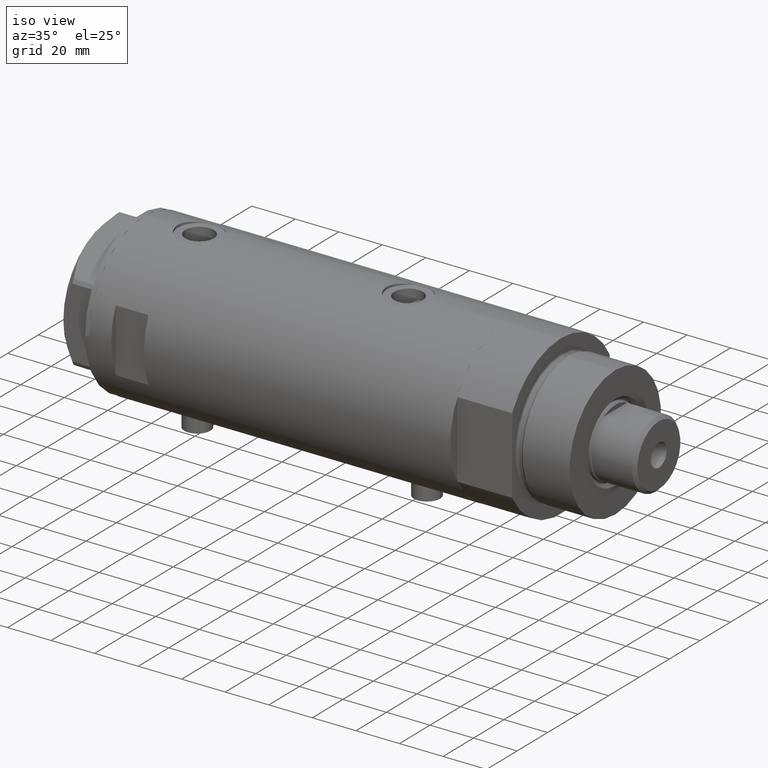
[diagram: clean part render]
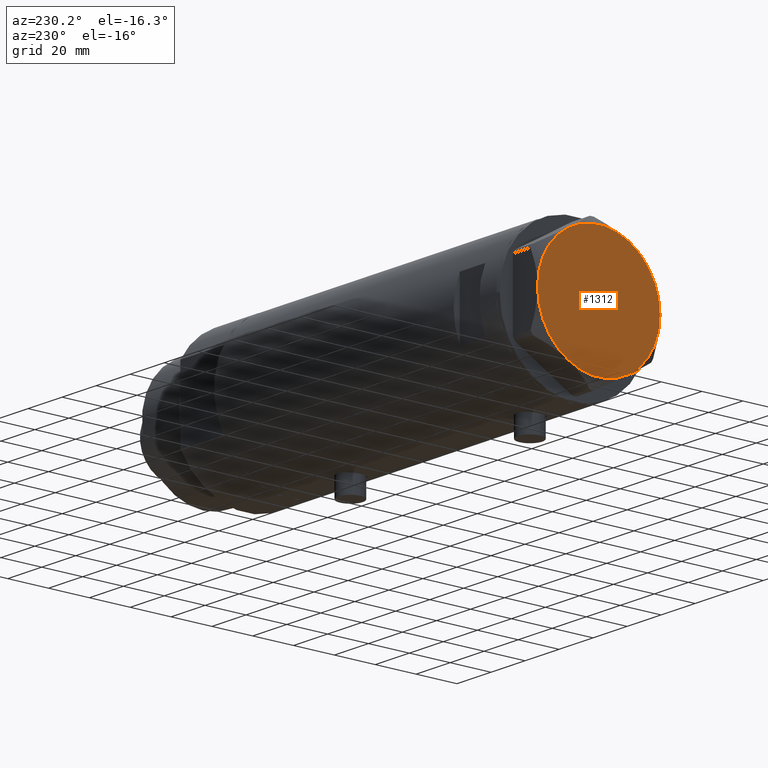
[diagram: tour spotlight — one face highlighted and labeled with its STEP entity id]
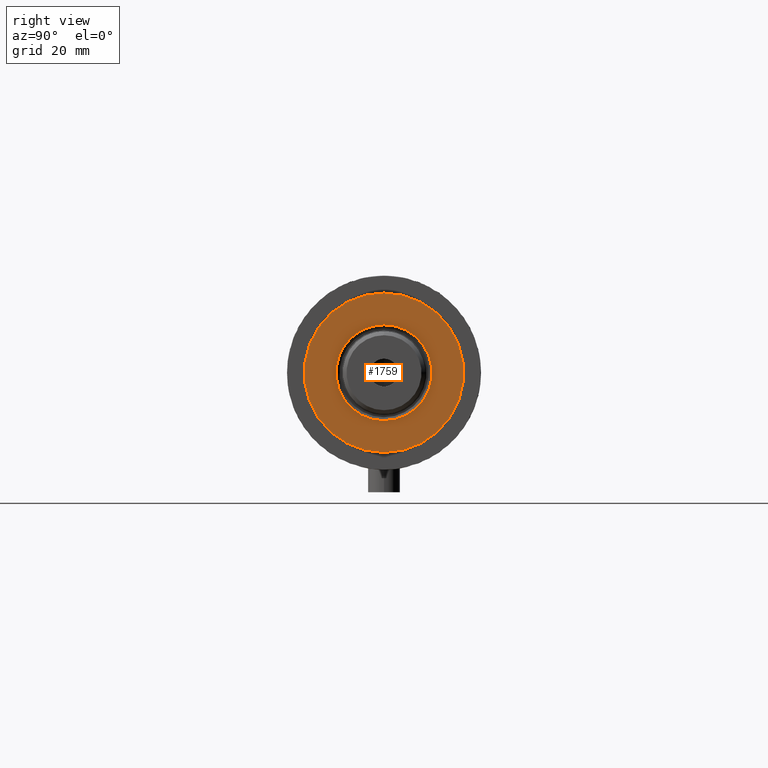
[diagram: tour spotlight — one face highlighted and labeled with its STEP entity id]
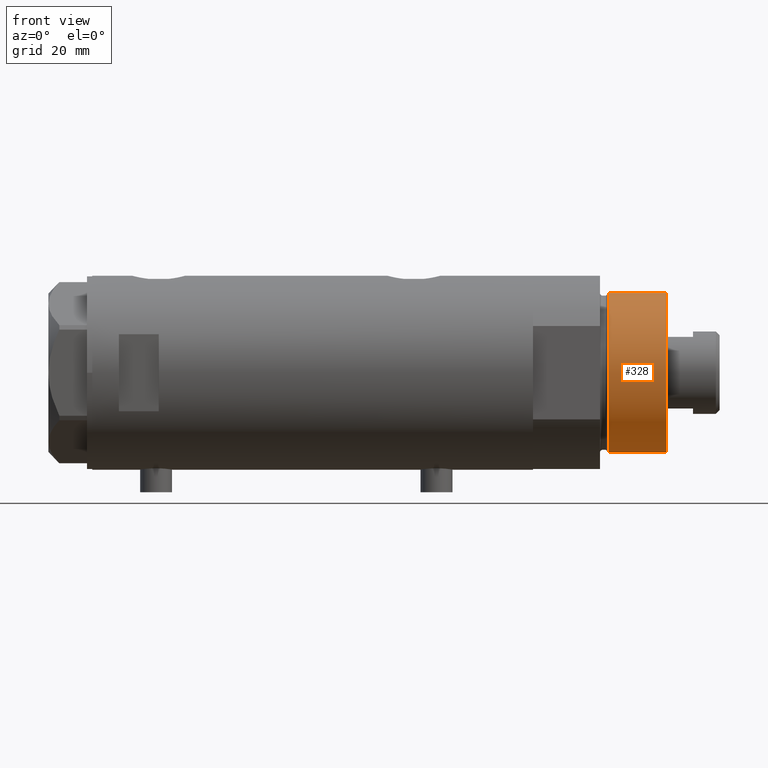
[diagram: tour spotlight — one face highlighted and labeled with its STEP entity id]
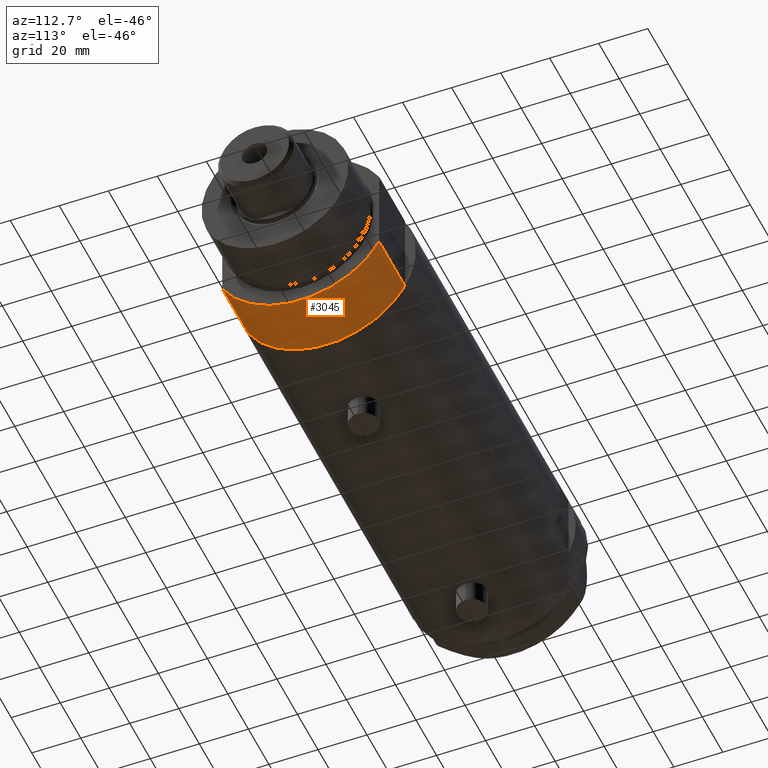
[diagram: tour spotlight — one face highlighted and labeled with its STEP entity id]
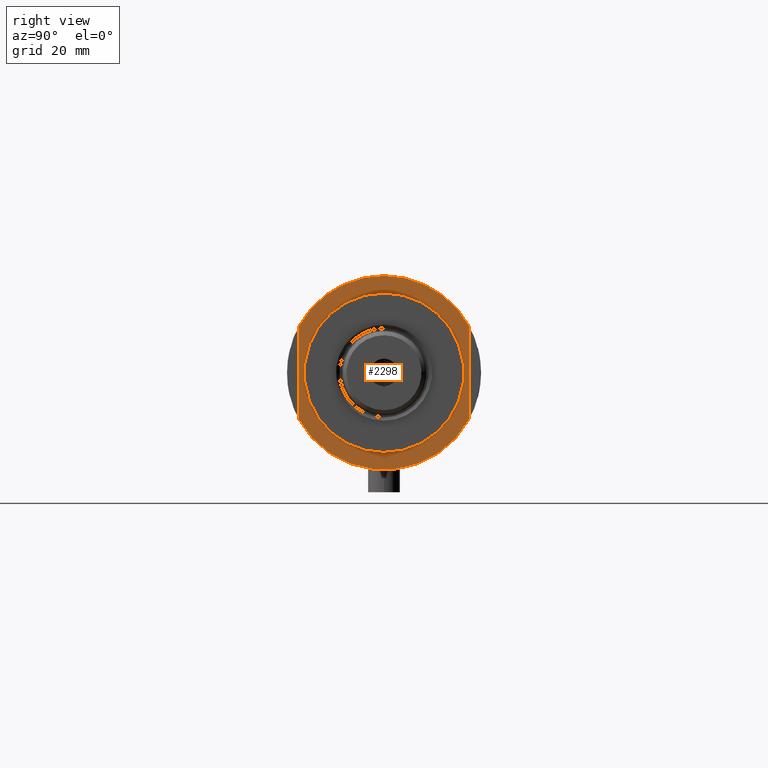
[diagram: tour spotlight — one face highlighted and labeled with its STEP entity id]
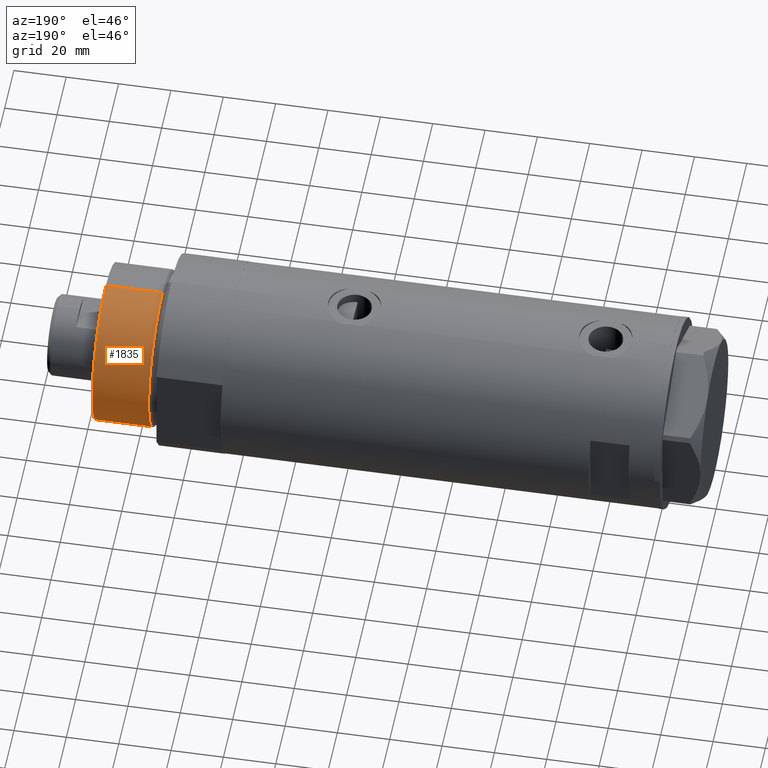
[diagram: tour spotlight — one face highlighted and labeled with its STEP entity id]
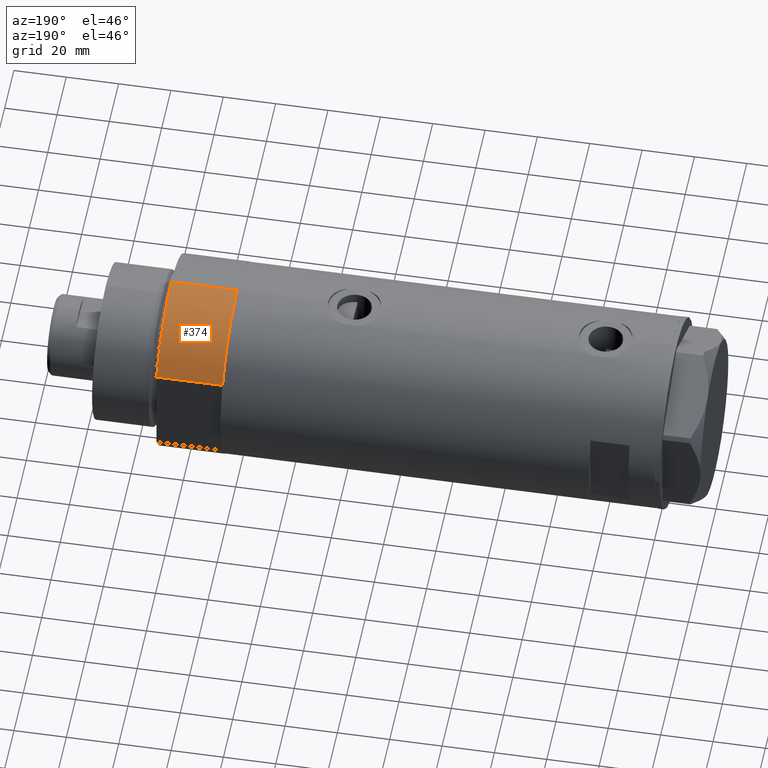
[diagram: tour spotlight — one face highlighted and labeled with its STEP entity id]
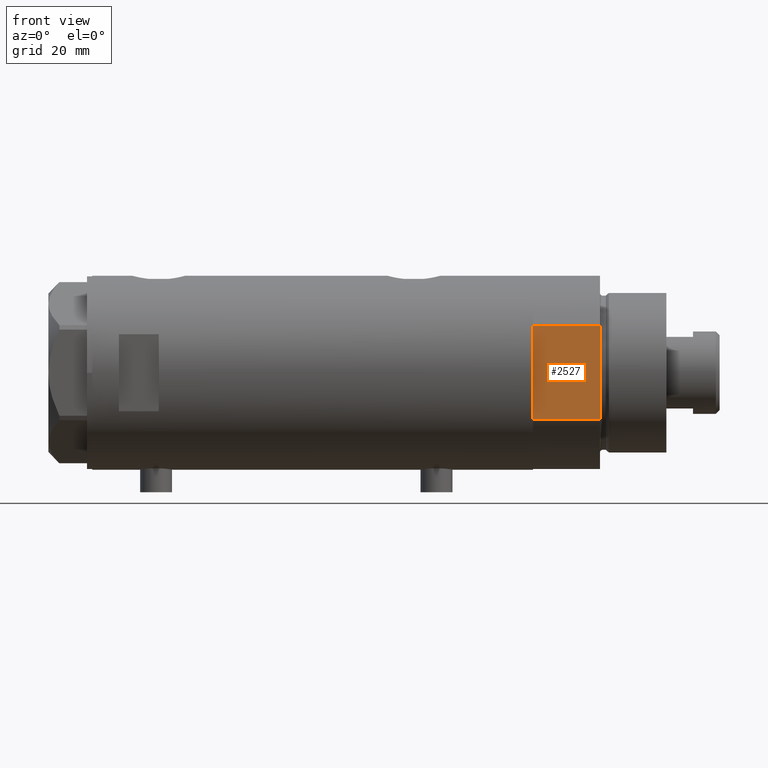
[diagram: tour spotlight — one face highlighted and labeled with its STEP entity id]
A machine part: a face-by-face anatomy tour. The part has 120 B-rep faces; the first image is the clean iso view, then the 8 largest visible faces are spotlighted one at a time (largest first), each with its STEP entity span.

Face 1 — auxiliary view, entity #1312. In plain terms, the highlighted planar face has unit normal (-1, -0, 0).
Definition (entity closure, byte-faithful):
#21 = EDGE_CURVE ( 'NONE', #3964, #4322, #2055, .T. ) ;
#49 = FACE_OUTER_BOUND ( 'NONE', #1789, .T. ) ;
#316 = ORIENTED_EDGE ( 'NONE', *, *, #789, .T. ) ;
#352 = ORIENTED_EDGE ( 'NONE', *, *, #1701, .T. ) ;
#392 = DIRECTION ( 'NONE',  ( 1.000000000000000000, 0.000000000000000000, 0.000000000000000000 ) ) ;
#412 = ORIENTED_EDGE ( 'NONE', *, *, #1174, .T. ) ;
#627 = DIRECTION ( 'NONE',  ( 0.000000000000000000, 0.000000000000000000, 1.000000000000000000 ) ) ;
#642 = DIRECTION ( 'NONE',  ( 1.000000000000000000, 0.000000000000000000, 0.000000000000000000 ) ) ;
#659 = DIRECTION ( 'NONE',  ( 1.000000000000000000, 0.000000000000000000, 0.000000000000000000 ) ) ;
#668 = AXIS2_PLACEMENT_3D ( 'NONE', #2028, #3727, #659 ) ;
#745 = CIRCLE ( 'NONE', #2781, 30.00000000000000000 ) ;
#749 = PLANE ( 'NONE',  #4004 ) ;
#789 = EDGE_CURVE ( 'NONE', #4322, #3918, #3208, .T. ) ;
#798 = EDGE_CURVE ( 'NONE', #3918, #4395, #745, .T. ) ;
#890 = AXIS2_PLACEMENT_3D ( 'NONE', #2671, #4043, #642 ) ;
#1071 = DIRECTION ( 'NONE',  ( 1.000000000000000000, 0.000000000000000000, -0.000000000000000000 ) ) ;
#1167 = EDGE_CURVE ( 'NONE', #4395, #1331, #3785, .T. ) ;
#1174 = EDGE_CURVE ( 'NONE', #1331, #3913, #3720, .T. ) ;
#1287 = CARTESIAN_POINT ( 'NONE',  ( -30.00000000000000000, 0.000000000000000000, 14.50000000000000000 ) ) ;
#1312 = ADVANCED_FACE ( 'NONE', ( #49 ), #749, .T. ) ;
#1331 = VERTEX_POINT ( 'NONE', #3521 ) ;
#1668 = DIRECTION ( 'NONE',  ( 0.000000000000000000, 0.000000000000000000, 1.000000000000000000 ) ) ;
#1670 = CARTESIAN_POINT ( 'NONE',  ( 0.000000000000000000, 0.000000000000000000, 14.50000000000000000 ) ) ;
#1701 = EDGE_CURVE ( 'NONE', #3913, #3964, #2054, .T. ) ;
#1713 = DIRECTION ( 'NONE',  ( 1.000000000000000000, 0.000000000000000000, 0.000000000000000000 ) ) ;
#1735 = ORIENTED_EDGE ( 'NONE', *, *, #1167, .T. ) ;
#1789 = EDGE_LOOP ( 'NONE', ( #412, #352, #2907, #316, #3716, #1735 ) ) ;
#1793 = DIRECTION ( 'NONE',  ( 0.000000000000000000, 0.000000000000000000, 1.000000000000000000 ) ) ;
#2015 = DIRECTION ( 'NONE',  ( 1.000000000000000000, 0.000000000000000000, 0.000000000000000000 ) ) ;
#2028 = CARTESIAN_POINT ( 'NONE',  ( 0.000000000000000000, 0.000000000000000000, 14.50000000000000000 ) ) ;
#2044 = DIRECTION ( 'NONE',  ( 0.000000000000000000, 0.000000000000000000, 1.000000000000000000 ) ) ;
#2045 = CARTESIAN_POINT ( 'NONE',  ( 30.00000000000000000, 9.013887592422954582E-15, 14.50000000000000000 ) ) ;
#2054 = CIRCLE ( 'NONE', #3069, 30.00000000000000000 ) ;
#2055 = CIRCLE ( 'NONE', #3361, 30.00000000000000000 ) ;
#2476 = CARTESIAN_POINT ( 'NONE',  ( 0.000000000000000000, 0.000000000000000000, 14.50000000000000000 ) ) ;
#2671 = CARTESIAN_POINT ( 'NONE',  ( 0.000000000000000000, 0.000000000000000000, 14.50000000000000000 ) ) ;
#2696 = CARTESIAN_POINT ( 'NONE',  ( 14.99999999999999467, 25.98076211353316367, 14.50000000000000000 ) ) ;
#2781 = AXIS2_PLACEMENT_3D ( 'NONE', #4385, #627, #2015 ) ;
#2907 = ORIENTED_EDGE ( 'NONE', *, *, #21, .T. ) ;
#3069 = AXIS2_PLACEMENT_3D ( 'NONE', #2476, #1793, #392 ) ;
#3120 = DIRECTION ( 'NONE',  ( 1.000000000000000000, 0.000000000000000000, 0.000000000000000000 ) ) ;
#3133 = CARTESIAN_POINT ( 'NONE',  ( 0.000000000000000000, 0.000000000000000000, 14.50000000000000000 ) ) ;
#3208 = CIRCLE ( 'NONE', #3932, 30.00000000000000000 ) ;
#3361 = AXIS2_PLACEMENT_3D ( 'NONE', #1670, #4408, #3120 ) ;
#3521 = CARTESIAN_POINT ( 'NONE',  ( 14.99999999999998757, -25.98076211353316722, 14.50000000000000000 ) ) ;
#3716 = ORIENTED_EDGE ( 'NONE', *, *, #798, .T. ) ;
#3720 = CIRCLE ( 'NONE', #890, 30.00000000000000000 ) ;
#3722 = CARTESIAN_POINT ( 'NONE',  ( -14.99999999999999645, 25.98076211353316367, 14.50000000000000000 ) ) ;
#3727 = DIRECTION ( 'NONE',  ( 0.000000000000000000, 0.000000000000000000, 1.000000000000000000 ) ) ;
#3785 = CIRCLE ( 'NONE', #668, 30.00000000000000000 ) ;
#3913 = VERTEX_POINT ( 'NONE', #2045 ) ;
#3918 = VERTEX_POINT ( 'NONE', #1287 ) ;
#3932 = AXIS2_PLACEMENT_3D ( 'NONE', #4025, #1668, #1713 ) ;
#3964 = VERTEX_POINT ( 'NONE', #2696 ) ;
#4004 = AXIS2_PLACEMENT_3D ( 'NONE', #3133, #2044, #1071 ) ;
#4013 = CARTESIAN_POINT ( 'NONE',  ( -14.99999999999999645, -25.98076211353316367, 14.50000000000000000 ) ) ;
#4025 = CARTESIAN_POINT ( 'NONE',  ( 0.000000000000000000, 0.000000000000000000, 14.50000000000000000 ) ) ;
#4043 = DIRECTION ( 'NONE',  ( 0.000000000000000000, 0.000000000000000000, 1.000000000000000000 ) ) ;
#4322 = VERTEX_POINT ( 'NONE', #3722 ) ;
#4385 = CARTESIAN_POINT ( 'NONE',  ( 0.000000000000000000, 0.000000000000000000, 14.50000000000000000 ) ) ;
#4395 = VERTEX_POINT ( 'NONE', #4013 ) ;
#4408 = DIRECTION ( 'NONE',  ( 0.000000000000000000, 0.000000000000000000, 1.000000000000000000 ) ) ;

Face 2 — right view, entity #1759. In plain terms, the highlighted planar face has unit normal (1, 0, -0).
Definition (entity closure, byte-faithful):
#5 = EDGE_CURVE ( 'NONE', #2663, #3711, #1041, .T. ) ;
#53 = DIRECTION ( 'NONE',  ( 0.000000000000000000, 0.000000000000000000, 1.000000000000000000 ) ) ;
#310 = DIRECTION ( 'NONE',  ( -0.000000000000000000, -0.000000000000000000, -1.000000000000000000 ) ) ;
#311 = EDGE_LOOP ( 'NONE', ( #1016, #4364 ) ) ;
#486 = CIRCLE ( 'NONE', #4389, 18.04999999999996874 ) ;
#595 = DIRECTION ( 'NONE',  ( -0.000000000000000000, -0.000000000000000000, -1.000000000000000000 ) ) ;
#717 = CARTESIAN_POINT ( 'NONE',  ( 0.000000000000000000, 0.000000000000000000, 50.19999999999999574 ) ) ;
#935 = DIRECTION ( 'NONE',  ( 1.000000000000000000, 0.000000000000000000, 0.000000000000000000 ) ) ;
#1016 = ORIENTED_EDGE ( 'NONE', *, *, #3092, .T. ) ;
#1041 = CIRCLE ( 'NONE', #3431, 18.04999999999996874 ) ;
#1045 = FACE_BOUND ( 'NONE', #4187, .T. ) ;
#1096 = DIRECTION ( 'NONE',  ( 1.000000000000000000, 0.000000000000000000, 0.000000000000000000 ) ) ;
#1161 = CARTESIAN_POINT ( 'NONE',  ( 0.000000000000000000, 0.000000000000000000, 50.19999999999999574 ) ) ;
#1369 = DIRECTION ( 'NONE',  ( 0.000000000000000000, 0.000000000000000000, 1.000000000000000000 ) ) ;
#1591 = CARTESIAN_POINT ( 'NONE',  ( -18.04999999999996874, 2.210487472460968951E-15, 50.19999999999999574 ) ) ;
#1759 = ADVANCED_FACE ( 'NONE', ( #1045, #2042 ), #3156, .T. ) ;
#1836 = CARTESIAN_POINT ( 'NONE',  ( 30.00000000000000000, 3.673940397442058389E-15, 50.19999999999999574 ) ) ;
#2042 = FACE_OUTER_BOUND ( 'NONE', #311, .T. ) ;
#2050 = VERTEX_POINT ( 'NONE', #3335 ) ;
#2063 = AXIS2_PLACEMENT_3D ( 'NONE', #3859, #53, #1096 ) ;
#2515 = ORIENTED_EDGE ( 'NONE', *, *, #4361, .T. ) ;
#2536 = EDGE_CURVE ( 'NONE', #3108, #2050, #3731, .T. ) ;
#2548 = DIRECTION ( 'NONE',  ( 1.000000000000000000, 0.000000000000000000, 0.000000000000000000 ) ) ;
#2663 = VERTEX_POINT ( 'NONE', #1591 ) ;
#2917 = AXIS2_PLACEMENT_3D ( 'NONE', #3131, #1369, #3427 ) ;
#3092 = EDGE_CURVE ( 'NONE', #2050, #3108, #3293, .T. ) ;
#3108 = VERTEX_POINT ( 'NONE', #1836 ) ;
#3131 = CARTESIAN_POINT ( 'NONE',  ( 0.000000000000000000, 0.000000000000000000, 50.19999999999999574 ) ) ;
#3156 = PLANE ( 'NONE',  #2917 ) ;
#3223 = AXIS2_PLACEMENT_3D ( 'NONE', #1161, #3628, #2548 ) ;
#3293 = CIRCLE ( 'NONE', #3223, 30.00000000000000000 ) ;
#3335 = CARTESIAN_POINT ( 'NONE',  ( -30.00000000000000000, 0.000000000000000000, 50.19999999999999574 ) ) ;
#3338 = CARTESIAN_POINT ( 'NONE',  ( 0.000000000000000000, 0.000000000000000000, 50.19999999999999574 ) ) ;
#3427 = DIRECTION ( 'NONE',  ( 1.000000000000000000, 0.000000000000000000, -0.000000000000000000 ) ) ;
#3431 = AXIS2_PLACEMENT_3D ( 'NONE', #717, #310, #3463 ) ;
#3463 = DIRECTION ( 'NONE',  ( 1.000000000000000000, 0.000000000000000000, 0.000000000000000000 ) ) ;
#3483 = CARTESIAN_POINT ( 'NONE',  ( 18.04999999999996874, 0.000000000000000000, 50.19999999999999574 ) ) ;
#3506 = ORIENTED_EDGE ( 'NONE', *, *, #5, .T. ) ;
#3628 = DIRECTION ( 'NONE',  ( 0.000000000000000000, 0.000000000000000000, 1.000000000000000000 ) ) ;
#3711 = VERTEX_POINT ( 'NONE', #3483 ) ;
#3731 = CIRCLE ( 'NONE', #2063, 30.00000000000000000 ) ;
#3859 = CARTESIAN_POINT ( 'NONE',  ( 0.000000000000000000, 0.000000000000000000, 50.19999999999999574 ) ) ;
#4187 = EDGE_LOOP ( 'NONE', ( #2515, #3506 ) ) ;
#4361 = EDGE_CURVE ( 'NONE', #3711, #2663, #486, .T. ) ;
#4364 = ORIENTED_EDGE ( 'NONE', *, *, #2536, .T. ) ;
#4389 = AXIS2_PLACEMENT_3D ( 'NONE', #3338, #595, #935 ) ;

Face 3 — front view, entity #328. In plain terms, the highlighted cylindrical surface (partial cylindrical patch) has radius 30 mm, axis along (-1, -0, 0).
Definition (entity closure, byte-faithful):
#176 = AXIS2_PLACEMENT_3D ( 'NONE', #1060, #3124, #1426 ) ;
#226 = EDGE_LOOP ( 'NONE', ( #3419, #1674, #2954, #2264 ) ) ;
#328 = ADVANCED_FACE ( 'NONE', ( #2452 ), #4204, .T. ) ;
#368 = CARTESIAN_POINT ( 'NONE',  ( -30.00000000000000000, 0.000000000000000000, 50.19999999999999574 ) ) ;
#788 = CARTESIAN_POINT ( 'NONE',  ( 30.00000000000000000, 3.673940397442058389E-15, 28.57384048104054486 ) ) ;
#883 = DIRECTION ( 'NONE',  ( -0.000000000000000000, -0.000000000000000000, -1.000000000000000000 ) ) ;
#988 = CARTESIAN_POINT ( 'NONE',  ( -30.00000000000000000, 0.000000000000000000, 28.57384048104054486 ) ) ;
#1060 = CARTESIAN_POINT ( 'NONE',  ( 0.000000000000000000, 0.000000000000000000, 50.19999999999999574 ) ) ;
#1089 = EDGE_CURVE ( 'NONE', #2361, #3775, #2273, .T. ) ;
#1161 = CARTESIAN_POINT ( 'NONE',  ( 0.000000000000000000, 0.000000000000000000, 50.19999999999999574 ) ) ;
#1199 = VECTOR ( 'NONE', #883, 1000.000000000000000 ) ;
#1206 = CARTESIAN_POINT ( 'NONE',  ( 30.00000000000000000, 3.673940397442058389E-15, 50.19999999999999574 ) ) ;
#1212 = DIRECTION ( 'NONE',  ( -0.000000000000000000, -0.000000000000000000, 1.000000000000000000 ) ) ;
#1426 = DIRECTION ( 'NONE',  ( -1.000000000000000000, 0.000000000000000000, 0.000000000000000000 ) ) ;
#1674 = ORIENTED_EDGE ( 'NONE', *, *, #3092, .F. ) ;
#1836 = CARTESIAN_POINT ( 'NONE',  ( 30.00000000000000000, 3.673940397442058389E-15, 50.19999999999999574 ) ) ;
#1898 = AXIS2_PLACEMENT_3D ( 'NONE', #2218, #1212, #2578 ) ;
#2050 = VERTEX_POINT ( 'NONE', #3335 ) ;
#2218 = CARTESIAN_POINT ( 'NONE',  ( 0.000000000000000000, 0.000000000000000000, 28.57384048104054486 ) ) ;
#2264 = ORIENTED_EDGE ( 'NONE', *, *, #1089, .T. ) ;
#2273 = CIRCLE ( 'NONE', #1898, 30.00000000000000000 ) ;
#2361 = VERTEX_POINT ( 'NONE', #988 ) ;
#2391 = DIRECTION ( 'NONE',  ( -0.000000000000000000, -0.000000000000000000, -1.000000000000000000 ) ) ;
#2452 = FACE_OUTER_BOUND ( 'NONE', #226, .T. ) ;
#2548 = DIRECTION ( 'NONE',  ( 1.000000000000000000, 0.000000000000000000, 0.000000000000000000 ) ) ;
#2578 = DIRECTION ( 'NONE',  ( 1.000000000000000000, 0.000000000000000000, 0.000000000000000000 ) ) ;
#2954 = ORIENTED_EDGE ( 'NONE', *, *, #3312, .T. ) ;
#3015 = EDGE_CURVE ( 'NONE', #3108, #3775, #4327, .T. ) ;
#3092 = EDGE_CURVE ( 'NONE', #2050, #3108, #3293, .T. ) ;
#3108 = VERTEX_POINT ( 'NONE', #1836 ) ;
#3124 = DIRECTION ( 'NONE',  ( -0.000000000000000000, -0.000000000000000000, -1.000000000000000000 ) ) ;
#3223 = AXIS2_PLACEMENT_3D ( 'NONE', #1161, #3628, #2548 ) ;
#3293 = CIRCLE ( 'NONE', #3223, 30.00000000000000000 ) ;
#3312 = EDGE_CURVE ( 'NONE', #2050, #2361, #3515, .T. ) ;
#3335 = CARTESIAN_POINT ( 'NONE',  ( -30.00000000000000000, 0.000000000000000000, 50.19999999999999574 ) ) ;
#3419 = ORIENTED_EDGE ( 'NONE', *, *, #3015, .F. ) ;
#3515 = LINE ( 'NONE', #368, #3656 ) ;
#3628 = DIRECTION ( 'NONE',  ( 0.000000000000000000, 0.000000000000000000, 1.000000000000000000 ) ) ;
#3656 = VECTOR ( 'NONE', #2391, 1000.000000000000000 ) ;
#3775 = VERTEX_POINT ( 'NONE', #788 ) ;
#4204 = CYLINDRICAL_SURFACE ( 'NONE', #176, 30.00000000000000000 ) ;
#4327 = LINE ( 'NONE', #1206, #1199 ) ;

Face 4 — auxiliary view, entity #3045. In plain terms, the highlighted cylindrical surface (partial cylindrical patch) has radius 36.5 mm, axis along (-1, -0, 0).
Definition (entity closure, byte-faithful):
#130 = EDGE_CURVE ( 'NONE', #2401, #3691, #829, .T. ) ;
#135 = DIRECTION ( 'NONE',  ( -1.000000000000000000, 0.000000000000000000, 0.000000000000000000 ) ) ;
#180 = CYLINDRICAL_SURFACE ( 'NONE', #261, 36.50000000000000000 ) ;
#261 = AXIS2_PLACEMENT_3D ( 'NONE', #1566, #3987, #135 ) ;
#359 = CARTESIAN_POINT ( 'NONE',  ( 17.55704986607943496, 32.00000000000000000, 25.19999999999999929 ) ) ;
#421 = DIRECTION ( 'NONE',  ( 1.000000000000000000, 0.000000000000000000, 0.000000000000000000 ) ) ;
#614 = DIRECTION ( 'NONE',  ( 1.000000000000000000, 0.000000000000000000, 0.000000000000000000 ) ) ;
#829 = LINE ( 'NONE', #2123, #3282 ) ;
#978 = VECTOR ( 'NONE', #3265, 1000.000000000000000 ) ;
#982 = CIRCLE ( 'NONE', #3154, 36.50000000000000000 ) ;
#1566 = CARTESIAN_POINT ( 'NONE',  ( 0.000000000000000000, 0.000000000000000000, 25.19999999999999929 ) ) ;
#1902 = CARTESIAN_POINT ( 'NONE',  ( 17.55704986607943141, -32.00000000000000000, 0.000000000000000000 ) ) ;
#1984 = EDGE_CURVE ( 'NONE', #4300, #2401, #2999, .T. ) ;
#2057 = AXIS2_PLACEMENT_3D ( 'NONE', #3354, #2271, #614 ) ;
#2109 = VERTEX_POINT ( 'NONE', #3809 ) ;
#2123 = CARTESIAN_POINT ( 'NONE',  ( 17.55704986607943141, 32.00000000000000000, 0.000000000000000000 ) ) ;
#2271 = DIRECTION ( 'NONE',  ( 0.000000000000000000, 0.000000000000000000, 1.000000000000000000 ) ) ;
#2351 = CARTESIAN_POINT ( 'NONE',  ( 17.55704986607943496, 32.00000000000000000, 0.000000000000000000 ) ) ;
#2401 = VERTEX_POINT ( 'NONE', #2351 ) ;
#2477 = DIRECTION ( 'NONE',  ( 0.000000000000000000, 0.000000000000000000, 1.000000000000000000 ) ) ;
#2555 = DIRECTION ( 'NONE',  ( -0.000000000000000000, -0.000000000000000000, 1.000000000000000000 ) ) ;
#2559 = ORIENTED_EDGE ( 'NONE', *, *, #2908, .F. ) ;
#2585 = EDGE_CURVE ( 'NONE', #4300, #2109, #2905, .T. ) ;
#2716 = EDGE_LOOP ( 'NONE', ( #2559, #3396, #3189, #3422 ) ) ;
#2732 = CARTESIAN_POINT ( 'NONE',  ( 17.55704986607943141, -32.00000000000000000, 0.000000000000000000 ) ) ;
#2905 = LINE ( 'NONE', #1902, #978 ) ;
#2908 = EDGE_CURVE ( 'NONE', #2109, #3691, #982, .T. ) ;
#2999 = CIRCLE ( 'NONE', #2057, 36.50000000000000000 ) ;
#3045 = ADVANCED_FACE ( 'NONE', ( #3221 ), #180, .T. ) ;
#3114 = CARTESIAN_POINT ( 'NONE',  ( 0.000000000000000000, 0.000000000000000000, 25.19999999999999929 ) ) ;
#3154 = AXIS2_PLACEMENT_3D ( 'NONE', #3114, #2477, #421 ) ;
#3189 = ORIENTED_EDGE ( 'NONE', *, *, #1984, .T. ) ;
#3221 = FACE_OUTER_BOUND ( 'NONE', #2716, .T. ) ;
#3265 = DIRECTION ( 'NONE',  ( -0.000000000000000000, -0.000000000000000000, 1.000000000000000000 ) ) ;
#3282 = VECTOR ( 'NONE', #2555, 1000.000000000000000 ) ;
#3354 = CARTESIAN_POINT ( 'NONE',  ( 0.000000000000000000, 0.000000000000000000, 0.000000000000000000 ) ) ;
#3396 = ORIENTED_EDGE ( 'NONE', *, *, #2585, .F. ) ;
#3422 = ORIENTED_EDGE ( 'NONE', *, *, #130, .T. ) ;
#3691 = VERTEX_POINT ( 'NONE', #359 ) ;
#3809 = CARTESIAN_POINT ( 'NONE',  ( 17.55704986607943496, -32.00000000000000000, 25.19999999999999929 ) ) ;
#3987 = DIRECTION ( 'NONE',  ( -0.000000000000000000, -0.000000000000000000, -1.000000000000000000 ) ) ;
#4300 = VERTEX_POINT ( 'NONE', #2732 ) ;

Face 5 — right view, entity #2298. In plain terms, the highlighted planar face has unit normal (1, 0, -0).
Definition (entity closure, byte-faithful):
#48 = DIRECTION ( 'NONE',  ( 0.000000000000000000, 0.000000000000000000, 1.000000000000000000 ) ) ;
#55 = EDGE_LOOP ( 'NONE', ( #1289, #1963 ) ) ;
#99 = CIRCLE ( 'NONE', #676, 30.00000000000000355 ) ;
#104 = ORIENTED_EDGE ( 'NONE', *, *, #2894, .T. ) ;
#118 = EDGE_CURVE ( 'NONE', #1895, #4117, #99, .T. ) ;
#126 = DIRECTION ( 'NONE',  ( 1.000000000000000000, 0.000000000000000000, 0.000000000000000000 ) ) ;
#335 = VECTOR ( 'NONE', #2410, 1000.000000000000000 ) ;
#359 = CARTESIAN_POINT ( 'NONE',  ( 17.55704986607943496, 32.00000000000000000, 25.19999999999999929 ) ) ;
#421 = DIRECTION ( 'NONE',  ( 1.000000000000000000, 0.000000000000000000, 0.000000000000000000 ) ) ;
#454 = EDGE_LOOP ( 'NONE', ( #3961, #2062, #3556, #4052, #104 ) ) ;
#457 = EDGE_CURVE ( 'NONE', #1583, #876, #3436, .T. ) ;
#676 = AXIS2_PLACEMENT_3D ( 'NONE', #1846, #2849, #126 ) ;
#709 = CARTESIAN_POINT ( 'NONE',  ( 0.000000000000000000, 0.000000000000000000, 25.19999999999999929 ) ) ;
#826 = LINE ( 'NONE', #2217, #903 ) ;
#851 = DIRECTION ( 'NONE',  ( -1.000000000000000000, -0.000000000000000000, -0.000000000000000000 ) ) ;
#876 = VERTEX_POINT ( 'NONE', #924 ) ;
#903 = VECTOR ( 'NONE', #851, 1000.000000000000000 ) ;
#924 = CARTESIAN_POINT ( 'NONE',  ( -36.50000000000000000, 0.000000000000000000, 25.19999999999999929 ) ) ;
#939 = CARTESIAN_POINT ( 'NONE',  ( -17.55704986607943496, -32.00000000000000000, 25.19999999999999929 ) ) ;
#982 = CIRCLE ( 'NONE', #3154, 36.50000000000000000 ) ;
#1050 = CIRCLE ( 'NONE', #1559, 36.50000000000000000 ) ;
#1117 = AXIS2_PLACEMENT_3D ( 'NONE', #4384, #4451, #3689 ) ;
#1203 = VERTEX_POINT ( 'NONE', #939 ) ;
#1289 = ORIENTED_EDGE ( 'NONE', *, *, #2968, .T. ) ;
#1559 = AXIS2_PLACEMENT_3D ( 'NONE', #1729, #48, #3520 ) ;
#1583 = VERTEX_POINT ( 'NONE', #3666 ) ;
#1667 = PLANE ( 'NONE',  #1117 ) ;
#1729 = CARTESIAN_POINT ( 'NONE',  ( 0.000000000000000000, 0.000000000000000000, 25.19999999999999929 ) ) ;
#1764 = LINE ( 'NONE', #3764, #335 ) ;
#1846 = CARTESIAN_POINT ( 'NONE',  ( 0.000000000000000000, 0.000000000000000000, 25.19999999999999929 ) ) ;
#1895 = VERTEX_POINT ( 'NONE', #3243 ) ;
#1946 = DIRECTION ( 'NONE',  ( 0.000000000000000000, 0.000000000000000000, 1.000000000000000000 ) ) ;
#1963 = ORIENTED_EDGE ( 'NONE', *, *, #118, .T. ) ;
#1994 = AXIS2_PLACEMENT_3D ( 'NONE', #4338, #1946, #2700 ) ;
#2062 = ORIENTED_EDGE ( 'NONE', *, *, #2908, .T. ) ;
#2109 = VERTEX_POINT ( 'NONE', #3809 ) ;
#2217 = CARTESIAN_POINT ( 'NONE',  ( -17.55704986607943141, -32.00000000000000000, 25.19999999999999929 ) ) ;
#2298 = ADVANCED_FACE ( 'NONE', ( #3007, #4426 ), #1667, .T. ) ;
#2410 = DIRECTION ( 'NONE',  ( 1.000000000000000000, 0.000000000000000000, 0.000000000000000000 ) ) ;
#2477 = DIRECTION ( 'NONE',  ( 0.000000000000000000, 0.000000000000000000, 1.000000000000000000 ) ) ;
#2700 = DIRECTION ( 'NONE',  ( 1.000000000000000000, 0.000000000000000000, 0.000000000000000000 ) ) ;
#2708 = EDGE_CURVE ( 'NONE', #2109, #1203, #826, .T. ) ;
#2849 = DIRECTION ( 'NONE',  ( -0.000000000000000000, -0.000000000000000000, -1.000000000000000000 ) ) ;
#2894 = EDGE_CURVE ( 'NONE', #876, #1203, #1050, .T. ) ;
#2908 = EDGE_CURVE ( 'NONE', #2109, #3691, #982, .T. ) ;
#2968 = EDGE_CURVE ( 'NONE', #4117, #1895, #4304, .T. ) ;
#3007 = FACE_BOUND ( 'NONE', #55, .T. ) ;
#3114 = CARTESIAN_POINT ( 'NONE',  ( 0.000000000000000000, 0.000000000000000000, 25.19999999999999929 ) ) ;
#3154 = AXIS2_PLACEMENT_3D ( 'NONE', #3114, #2477, #421 ) ;
#3243 = CARTESIAN_POINT ( 'NONE',  ( -30.00000000000000355, 3.673940397442059178E-15, 25.19999999999999929 ) ) ;
#3400 = EDGE_CURVE ( 'NONE', #1583, #3691, #1764, .T. ) ;
#3436 = CIRCLE ( 'NONE', #1994, 36.50000000000000000 ) ;
#3475 = DIRECTION ( 'NONE',  ( -0.000000000000000000, -0.000000000000000000, -1.000000000000000000 ) ) ;
#3520 = DIRECTION ( 'NONE',  ( 1.000000000000000000, 0.000000000000000000, 0.000000000000000000 ) ) ;
#3556 = ORIENTED_EDGE ( 'NONE', *, *, #3400, .F. ) ;
#3588 = AXIS2_PLACEMENT_3D ( 'NONE', #709, #3475, #4260 ) ;
#3666 = CARTESIAN_POINT ( 'NONE',  ( -17.55704986607943496, 32.00000000000000000, 25.19999999999999929 ) ) ;
#3689 = DIRECTION ( 'NONE',  ( 1.000000000000000000, 0.000000000000000000, -0.000000000000000000 ) ) ;
#3691 = VERTEX_POINT ( 'NONE', #359 ) ;
#3764 = CARTESIAN_POINT ( 'NONE',  ( -17.55704986607943141, 32.00000000000000000, 25.19999999999999929 ) ) ;
#3809 = CARTESIAN_POINT ( 'NONE',  ( 17.55704986607943496, -32.00000000000000000, 25.19999999999999929 ) ) ;
#3961 = ORIENTED_EDGE ( 'NONE', *, *, #2708, .F. ) ;
#4052 = ORIENTED_EDGE ( 'NONE', *, *, #457, .T. ) ;
#4117 = VERTEX_POINT ( 'NONE', #4216 ) ;
#4216 = CARTESIAN_POINT ( 'NONE',  ( 30.00000000000000355, 0.000000000000000000, 25.19999999999999929 ) ) ;
#4260 = DIRECTION ( 'NONE',  ( 1.000000000000000000, 0.000000000000000000, 0.000000000000000000 ) ) ;
#4304 = CIRCLE ( 'NONE', #3588, 30.00000000000000355 ) ;
#4338 = CARTESIAN_POINT ( 'NONE',  ( 0.000000000000000000, 0.000000000000000000, 25.19999999999999929 ) ) ;
#4384 = CARTESIAN_POINT ( 'NONE',  ( 0.000000000000000000, 0.000000000000000000, 25.19999999999999929 ) ) ;
#4426 = FACE_OUTER_BOUND ( 'NONE', #454, .T. ) ;
#4451 = DIRECTION ( 'NONE',  ( 0.000000000000000000, 0.000000000000000000, 1.000000000000000000 ) ) ;

Face 6 — auxiliary view, entity #1835. In plain terms, the highlighted cylindrical surface (partial cylindrical patch) has radius 30 mm, axis along (-1, -0, 0).
Definition (entity closure, byte-faithful):
#53 = DIRECTION ( 'NONE',  ( 0.000000000000000000, 0.000000000000000000, 1.000000000000000000 ) ) ;
#134 = CYLINDRICAL_SURFACE ( 'NONE', #2281, 30.00000000000000000 ) ;
#179 = FACE_OUTER_BOUND ( 'NONE', #3636, .T. ) ;
#265 = CIRCLE ( 'NONE', #2150, 30.00000000000000000 ) ;
#368 = CARTESIAN_POINT ( 'NONE',  ( -30.00000000000000000, 0.000000000000000000, 50.19999999999999574 ) ) ;
#788 = CARTESIAN_POINT ( 'NONE',  ( 30.00000000000000000, 3.673940397442058389E-15, 28.57384048104054486 ) ) ;
#883 = DIRECTION ( 'NONE',  ( -0.000000000000000000, -0.000000000000000000, -1.000000000000000000 ) ) ;
#988 = CARTESIAN_POINT ( 'NONE',  ( -30.00000000000000000, 0.000000000000000000, 28.57384048104054486 ) ) ;
#1096 = DIRECTION ( 'NONE',  ( 1.000000000000000000, 0.000000000000000000, 0.000000000000000000 ) ) ;
#1195 = ORIENTED_EDGE ( 'NONE', *, *, #3312, .F. ) ;
#1199 = VECTOR ( 'NONE', #883, 1000.000000000000000 ) ;
#1206 = CARTESIAN_POINT ( 'NONE',  ( 30.00000000000000000, 3.673940397442058389E-15, 50.19999999999999574 ) ) ;
#1380 = ORIENTED_EDGE ( 'NONE', *, *, #2536, .F. ) ;
#1650 = ORIENTED_EDGE ( 'NONE', *, *, #3015, .T. ) ;
#1757 = ORIENTED_EDGE ( 'NONE', *, *, #3484, .T. ) ;
#1835 = ADVANCED_FACE ( 'NONE', ( #179 ), #134, .T. ) ;
#1836 = CARTESIAN_POINT ( 'NONE',  ( 30.00000000000000000, 3.673940397442058389E-15, 50.19999999999999574 ) ) ;
#1858 = DIRECTION ( 'NONE',  ( -1.000000000000000000, 0.000000000000000000, 0.000000000000000000 ) ) ;
#2050 = VERTEX_POINT ( 'NONE', #3335 ) ;
#2063 = AXIS2_PLACEMENT_3D ( 'NONE', #3859, #53, #1096 ) ;
#2150 = AXIS2_PLACEMENT_3D ( 'NONE', #2180, #3196, #3579 ) ;
#2180 = CARTESIAN_POINT ( 'NONE',  ( 0.000000000000000000, 0.000000000000000000, 28.57384048104054486 ) ) ;
#2281 = AXIS2_PLACEMENT_3D ( 'NONE', #3544, #3608, #1858 ) ;
#2361 = VERTEX_POINT ( 'NONE', #988 ) ;
#2391 = DIRECTION ( 'NONE',  ( -0.000000000000000000, -0.000000000000000000, -1.000000000000000000 ) ) ;
#2536 = EDGE_CURVE ( 'NONE', #3108, #2050, #3731, .T. ) ;
#3015 = EDGE_CURVE ( 'NONE', #3108, #3775, #4327, .T. ) ;
#3108 = VERTEX_POINT ( 'NONE', #1836 ) ;
#3196 = DIRECTION ( 'NONE',  ( -0.000000000000000000, -0.000000000000000000, 1.000000000000000000 ) ) ;
#3312 = EDGE_CURVE ( 'NONE', #2050, #2361, #3515, .T. ) ;
#3335 = CARTESIAN_POINT ( 'NONE',  ( -30.00000000000000000, 0.000000000000000000, 50.19999999999999574 ) ) ;
#3484 = EDGE_CURVE ( 'NONE', #3775, #2361, #265, .T. ) ;
#3515 = LINE ( 'NONE', #368, #3656 ) ;
#3544 = CARTESIAN_POINT ( 'NONE',  ( 0.000000000000000000, 0.000000000000000000, 50.19999999999999574 ) ) ;
#3579 = DIRECTION ( 'NONE',  ( 1.000000000000000000, 0.000000000000000000, 0.000000000000000000 ) ) ;
#3608 = DIRECTION ( 'NONE',  ( -0.000000000000000000, -0.000000000000000000, -1.000000000000000000 ) ) ;
#3636 = EDGE_LOOP ( 'NONE', ( #1380, #1650, #1757, #1195 ) ) ;
#3656 = VECTOR ( 'NONE', #2391, 1000.000000000000000 ) ;
#3731 = CIRCLE ( 'NONE', #2063, 30.00000000000000000 ) ;
#3775 = VERTEX_POINT ( 'NONE', #788 ) ;
#3859 = CARTESIAN_POINT ( 'NONE',  ( 0.000000000000000000, 0.000000000000000000, 50.19999999999999574 ) ) ;
#4327 = LINE ( 'NONE', #1206, #1199 ) ;

Face 7 — auxiliary view, entity #374. In plain terms, the highlighted cylindrical surface (partial cylindrical patch) has radius 36.5 mm, axis along (-1, -0, 0).
Definition (entity closure, byte-faithful):
#16 = CARTESIAN_POINT ( 'NONE',  ( -36.50000000000000000, 0.000000000000000000, 25.19999999999999929 ) ) ;
#80 = CYLINDRICAL_SURFACE ( 'NONE', #2860, 36.50000000000000000 ) ;
#153 = DIRECTION ( 'NONE',  ( 0.000000000000000000, 0.000000000000000000, 1.000000000000000000 ) ) ;
#281 = VERTEX_POINT ( 'NONE', #3828 ) ;
#322 = DIRECTION ( 'NONE',  ( -0.000000000000000000, -0.000000000000000000, -1.000000000000000000 ) ) ;
#345 = CARTESIAN_POINT ( 'NONE',  ( -17.55704986607943141, 32.00000000000000000, 0.000000000000000000 ) ) ;
#374 = ADVANCED_FACE ( 'NONE', ( #2265 ), #80, .T. ) ;
#457 = EDGE_CURVE ( 'NONE', #1583, #876, #3436, .T. ) ;
#725 = DIRECTION ( 'NONE',  ( -0.000000000000000000, -0.000000000000000000, 1.000000000000000000 ) ) ;
#876 = VERTEX_POINT ( 'NONE', #924 ) ;
#924 = CARTESIAN_POINT ( 'NONE',  ( -36.50000000000000000, 0.000000000000000000, 25.19999999999999929 ) ) ;
#1294 = EDGE_LOOP ( 'NONE', ( #1825, #2745, #3127, #3057 ) ) ;
#1583 = VERTEX_POINT ( 'NONE', #3666 ) ;
#1628 = AXIS2_PLACEMENT_3D ( 'NONE', #3966, #153, #2885 ) ;
#1825 = ORIENTED_EDGE ( 'NONE', *, *, #4447, .F. ) ;
#1918 = DIRECTION ( 'NONE',  ( -0.000000000000000000, -0.000000000000000000, -1.000000000000000000 ) ) ;
#1946 = DIRECTION ( 'NONE',  ( 0.000000000000000000, 0.000000000000000000, 1.000000000000000000 ) ) ;
#1994 = AXIS2_PLACEMENT_3D ( 'NONE', #4338, #1946, #2700 ) ;
#2199 = CARTESIAN_POINT ( 'NONE',  ( 0.000000000000000000, 0.000000000000000000, 25.19999999999999929 ) ) ;
#2265 = FACE_OUTER_BOUND ( 'NONE', #1294, .T. ) ;
#2700 = DIRECTION ( 'NONE',  ( 1.000000000000000000, 0.000000000000000000, 0.000000000000000000 ) ) ;
#2745 = ORIENTED_EDGE ( 'NONE', *, *, #457, .F. ) ;
#2860 = AXIS2_PLACEMENT_3D ( 'NONE', #2199, #1918, #4000 ) ;
#2885 = DIRECTION ( 'NONE',  ( 1.000000000000000000, 0.000000000000000000, 0.000000000000000000 ) ) ;
#3020 = VECTOR ( 'NONE', #322, 1000.000000000000000 ) ;
#3057 = ORIENTED_EDGE ( 'NONE', *, *, #3070, .T. ) ;
#3070 = EDGE_CURVE ( 'NONE', #4416, #281, #3802, .T. ) ;
#3127 = ORIENTED_EDGE ( 'NONE', *, *, #3376, .F. ) ;
#3376 = EDGE_CURVE ( 'NONE', #4416, #1583, #3491, .T. ) ;
#3436 = CIRCLE ( 'NONE', #1994, 36.50000000000000000 ) ;
#3491 = LINE ( 'NONE', #345, #4015 ) ;
#3492 = LINE ( 'NONE', #16, #3020 ) ;
#3666 = CARTESIAN_POINT ( 'NONE',  ( -17.55704986607943496, 32.00000000000000000, 25.19999999999999929 ) ) ;
#3802 = CIRCLE ( 'NONE', #1628, 36.50000000000000000 ) ;
#3828 = CARTESIAN_POINT ( 'NONE',  ( -36.50000000000000000, 0.000000000000000000, 0.000000000000000000 ) ) ;
#3966 = CARTESIAN_POINT ( 'NONE',  ( 0.000000000000000000, 0.000000000000000000, 0.000000000000000000 ) ) ;
#4000 = DIRECTION ( 'NONE',  ( -1.000000000000000000, 0.000000000000000000, 0.000000000000000000 ) ) ;
#4015 = VECTOR ( 'NONE', #725, 1000.000000000000000 ) ;
#4313 = CARTESIAN_POINT ( 'NONE',  ( -17.55704986607943141, 32.00000000000000000, 0.000000000000000000 ) ) ;
#4338 = CARTESIAN_POINT ( 'NONE',  ( 0.000000000000000000, 0.000000000000000000, 25.19999999999999929 ) ) ;
#4416 = VERTEX_POINT ( 'NONE', #4313 ) ;
#4447 = EDGE_CURVE ( 'NONE', #876, #281, #3492, .T. ) ;

Face 8 — front view, entity #2527. In plain terms, the highlighted planar face has unit normal (-0, 1, 0).
Definition (entity closure, byte-faithful):
#98 = EDGE_CURVE ( 'NONE', #1738, #1203, #3530, .T. ) ;
#427 = PLANE ( 'NONE',  #1341 ) ;
#430 = DIRECTION ( 'NONE',  ( -0.000000000000000000, -0.000000000000000000, 1.000000000000000000 ) ) ;
#488 = EDGE_CURVE ( 'NONE', #2349, #1738, #1266, .T. ) ;
#613 = VECTOR ( 'NONE', #3692, 1000.000000000000000 ) ;
#826 = LINE ( 'NONE', #2217, #903 ) ;
#851 = DIRECTION ( 'NONE',  ( -1.000000000000000000, -0.000000000000000000, -0.000000000000000000 ) ) ;
#903 = VECTOR ( 'NONE', #851, 1000.000000000000000 ) ;
#925 = CARTESIAN_POINT ( 'NONE',  ( -17.55704986607943141, -32.00000000000000000, 0.000000000000000000 ) ) ;
#926 = CARTESIAN_POINT ( 'NONE',  ( -17.55704986607943496, -32.00000000000000000, 0.000000000000000000 ) ) ;
#939 = CARTESIAN_POINT ( 'NONE',  ( -17.55704986607943496, -32.00000000000000000, 25.19999999999999929 ) ) ;
#978 = VECTOR ( 'NONE', #3265, 1000.000000000000000 ) ;
#1203 = VERTEX_POINT ( 'NONE', #939 ) ;
#1229 = CARTESIAN_POINT ( 'NONE',  ( -17.55704986607943141, -32.00000000000000000, 0.000000000000000000 ) ) ;
#1247 = ORIENTED_EDGE ( 'NONE', *, *, #3059, .F. ) ;
#1266 = LINE ( 'NONE', #925, #613 ) ;
#1341 = AXIS2_PLACEMENT_3D ( 'NONE', #2100, #2443, #4179 ) ;
#1738 = VERTEX_POINT ( 'NONE', #926 ) ;
#1741 = ORIENTED_EDGE ( 'NONE', *, *, #98, .F. ) ;
#1776 = FACE_OUTER_BOUND ( 'NONE', #3470, .T. ) ;
#1902 = CARTESIAN_POINT ( 'NONE',  ( 17.55704986607943141, -32.00000000000000000, 0.000000000000000000 ) ) ;
#1914 = ORIENTED_EDGE ( 'NONE', *, *, #2585, .T. ) ;
#1986 = CARTESIAN_POINT ( 'NONE',  ( 0.000000000000000000, -32.00000000000000000, 0.000000000000000000 ) ) ;
#2100 = CARTESIAN_POINT ( 'NONE',  ( -17.55704986607943141, -32.00000000000000000, 0.000000000000000000 ) ) ;
#2109 = VERTEX_POINT ( 'NONE', #3809 ) ;
#2208 = VECTOR ( 'NONE', #430, 1000.000000000000000 ) ;
#2217 = CARTESIAN_POINT ( 'NONE',  ( -17.55704986607943141, -32.00000000000000000, 25.19999999999999929 ) ) ;
#2349 = VERTEX_POINT ( 'NONE', #1986 ) ;
#2443 = DIRECTION ( 'NONE',  ( -0.000000000000000000, 1.000000000000000000, 0.000000000000000000 ) ) ;
#2527 = ADVANCED_FACE ( 'NONE', ( #1776 ), #427, .F. ) ;
#2585 = EDGE_CURVE ( 'NONE', #4300, #2109, #2905, .T. ) ;
#2655 = VECTOR ( 'NONE', #3902, 1000.000000000000000 ) ;
#2708 = EDGE_CURVE ( 'NONE', #2109, #1203, #826, .T. ) ;
#2732 = CARTESIAN_POINT ( 'NONE',  ( 17.55704986607943141, -32.00000000000000000, 0.000000000000000000 ) ) ;
#2806 = CARTESIAN_POINT ( 'NONE',  ( -17.55704986607943141, -32.00000000000000000, 0.000000000000000000 ) ) ;
#2905 = LINE ( 'NONE', #1902, #978 ) ;
#3059 = EDGE_CURVE ( 'NONE', #4300, #2349, #3924, .T. ) ;
#3265 = DIRECTION ( 'NONE',  ( -0.000000000000000000, -0.000000000000000000, 1.000000000000000000 ) ) ;
#3470 = EDGE_LOOP ( 'NONE', ( #4143, #1741, #3808, #1247, #1914 ) ) ;
#3530 = LINE ( 'NONE', #2806, #2208 ) ;
#3692 = DIRECTION ( 'NONE',  ( -1.000000000000000000, -0.000000000000000000, -0.000000000000000000 ) ) ;
#3808 = ORIENTED_EDGE ( 'NONE', *, *, #488, .F. ) ;
#3809 = CARTESIAN_POINT ( 'NONE',  ( 17.55704986607943496, -32.00000000000000000, 25.19999999999999929 ) ) ;
#3902 = DIRECTION ( 'NONE',  ( -1.000000000000000000, -0.000000000000000000, -0.000000000000000000 ) ) ;
#3924 = LINE ( 'NONE', #1229, #2655 ) ;
#4143 = ORIENTED_EDGE ( 'NONE', *, *, #2708, .T. ) ;
#4179 = DIRECTION ( 'NONE',  ( 0.000000000000000000, -0.000000000000000000, 1.000000000000000000 ) ) ;
#4300 = VERTEX_POINT ( 'NONE', #2732 ) ;